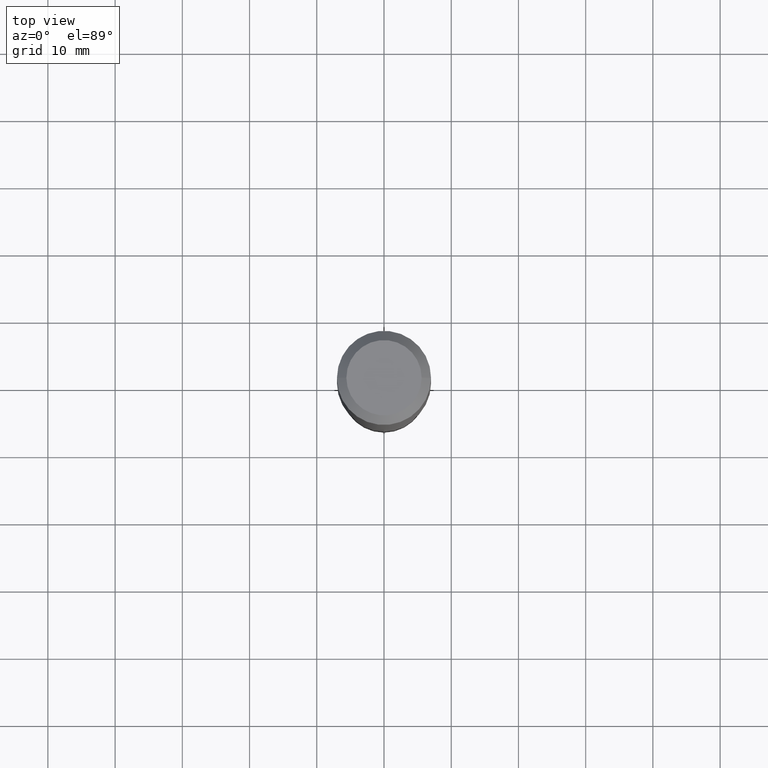
[diagram: clean part render]
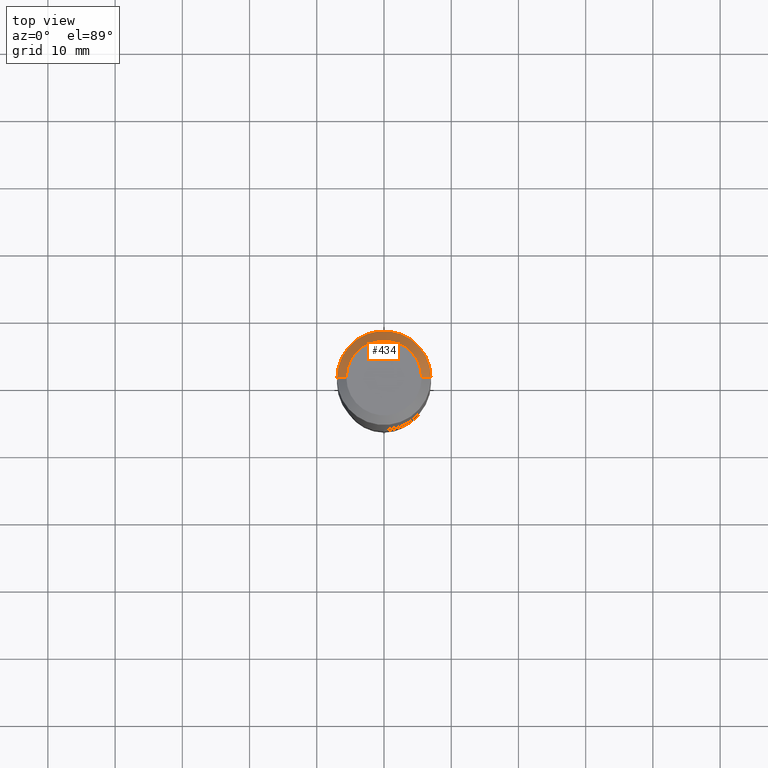
[diagram: same view with one face highlighted and labeled with its STEP entity id]
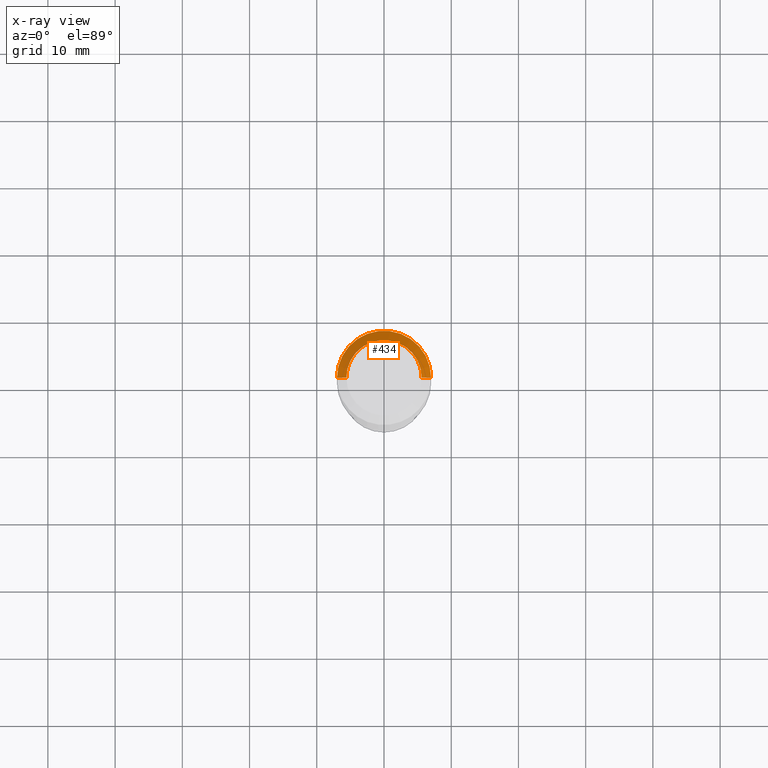
[diagram: x-ray of the same camera — body ghosted, the highlighted face saturated]
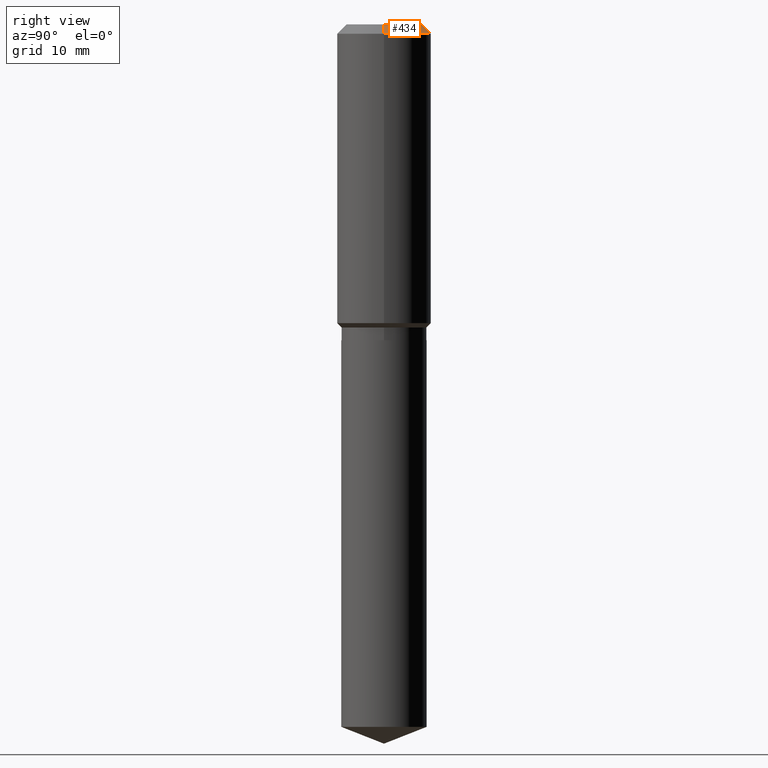
[diagram: same view with one face highlighted and labeled with its STEP entity id]
A machine part, top view. The second image highlights one B-rep face of the part: STEP entity #434.
The next image is the same camera in x-ray: the body ghosted, the highlighted face saturated — about 0% of this face is hidden behind the body in this view.
A second angle (right view) of the same face is appended — the face is thin or edge-on in the first view.
In plain terms, the highlighted conical surface has half-angle 45 deg.
Its self-contained STEP definition (entity closure, byte-faithful):
#10 = CARTESIAN_POINT ( 'NONE',  ( 1.347942405969256063E-30, -1.924504513970354330E-16, -0.05512000000000035621 ) ) ;
#14 = VERTEX_POINT ( 'NONE', #218 ) ;
#18 = AXIS2_PLACEMENT_3D ( 'NONE', #348, #174, #229 ) ;
#23 = AXIS2_PLACEMENT_3D ( 'NONE', #232, #195, #308 ) ;
#24 = EDGE_LOOP ( 'NONE', ( #119, #309, #425, #421 ) ) ;
#40 = DIRECTION ( 'NONE',  ( 0.7071067811865453523, -7.319954787623248157E-15, -0.7071067811865496822 ) ) ;
#51 = VERTEX_POINT ( 'NONE', #358 ) ;
#54 = CARTESIAN_POINT ( 'NONE',  ( 0.2756000000000000116, -2.083203699582869812E-15, -0.05512000000000035621 ) ) ;
#59 = CARTESIAN_POINT ( 'NONE',  ( -0.2756000000000000116, -1.192666469297548903E-15, -0.05512000000000035621 ) ) ;
#96 = FACE_OUTER_BOUND ( 'NONE', #24, .T. ) ;
#101 = AXIS2_PLACEMENT_3D ( 'NONE', #10, #166, #410 ) ;
#119 = ORIENTED_EDGE ( 'NONE', *, *, #187, .F. ) ;
#161 = LINE ( 'NONE', #54, #324 ) ;
#166 = DIRECTION ( 'NONE',  ( -2.445468806185136597E-29, 3.491481338843145583E-15, 1.000000000000000000 ) ) ;
#174 = DIRECTION ( 'NONE',  ( 2.445468806185136597E-29, -3.491481338843145583E-15, -1.000000000000000000 ) ) ;
#187 = EDGE_CURVE ( 'NONE', #14, #190, #452, .T. ) ;
#190 = VERTEX_POINT ( 'NONE', #469 ) ;
#195 = DIRECTION ( 'NONE',  ( -2.445468806185136597E-29, 3.491481338843145583E-15, 1.000000000000000000 ) ) ;
#214 = CONICAL_SURFACE ( 'NONE', #18, 0.2756000000000000116, 0.7853981633974452814 ) ;
#216 = EDGE_CURVE ( 'NONE', #51, #458, #296, .T. ) ;
#218 = CARTESIAN_POINT ( 'NONE',  ( 0.2204800000000000093, -1.797903149065768707E-15, 3.860086710924123164E-18 ) ) ;
#229 = DIRECTION ( 'NONE',  ( -1.000000000000000000, 6.982962677686269077E-15, 0.000000000000000000 ) ) ;
#232 = CARTESIAN_POINT ( 'NONE',  ( -9.439721640706190018E-47, 1.347742071746724849E-32, 3.860086710912454339E-18 ) ) ;
#239 = CARTESIAN_POINT ( 'NONE',  ( -0.2756000000000000116, 1.732054062573300039E-15, -0.05512000000000035621 ) ) ;
#296 = CIRCLE ( 'NONE', #101, 0.2756000000000000116 ) ;
#308 = DIRECTION ( 'NONE',  ( 1.000000000000000000, -6.982962677686266711E-15, 4.876132675269083677E-29 ) ) ;
#309 = ORIENTED_EDGE ( 'NONE', *, *, #327, .T. ) ;
#324 = VECTOR ( 'NONE', #40, 39.37007874015748143 ) ;
#327 = EDGE_CURVE ( 'NONE', #14, #51, #161, .T. ) ;
#348 = CARTESIAN_POINT ( 'NONE',  ( 1.347942405969256063E-30, -1.924504513970354330E-16, -0.05512000000000035621 ) ) ;
#358 = CARTESIAN_POINT ( 'NONE',  ( 0.2756000000000000116, -2.116954965367370658E-15, -0.05512000000000035621 ) ) ;
#373 = LINE ( 'NONE', #239, #447 ) ;
#384 = DIRECTION ( 'NONE',  ( -0.7071067811865453523, 2.468850131082234184E-15, -0.7071067811865496822 ) ) ;
#398 = EDGE_CURVE ( 'NONE', #190, #458, #373, .T. ) ;
#410 = DIRECTION ( 'NONE',  ( 1.000000000000000000, -6.982962677686265922E-15, 0.000000000000000000 ) ) ;
#421 = ORIENTED_EDGE ( 'NONE', *, *, #398, .F. ) ;
#425 = ORIENTED_EDGE ( 'NONE', *, *, #216, .T. ) ;
#434 = ADVANCED_FACE ( 'NONE', ( #96 ), #214, .T. ) ;
#447 = VECTOR ( 'NONE', #384, 39.37007874015748143 ) ;
#452 = CIRCLE ( 'NONE', #23, 0.2204800000000000093 ) ;
#458 = VERTEX_POINT ( 'NONE', #59 ) ;
#469 = CARTESIAN_POINT ( 'NONE',  ( -0.2204800000000000093, 1.635828836874783961E-15, 3.860086710901350968E-18 ) ) ;